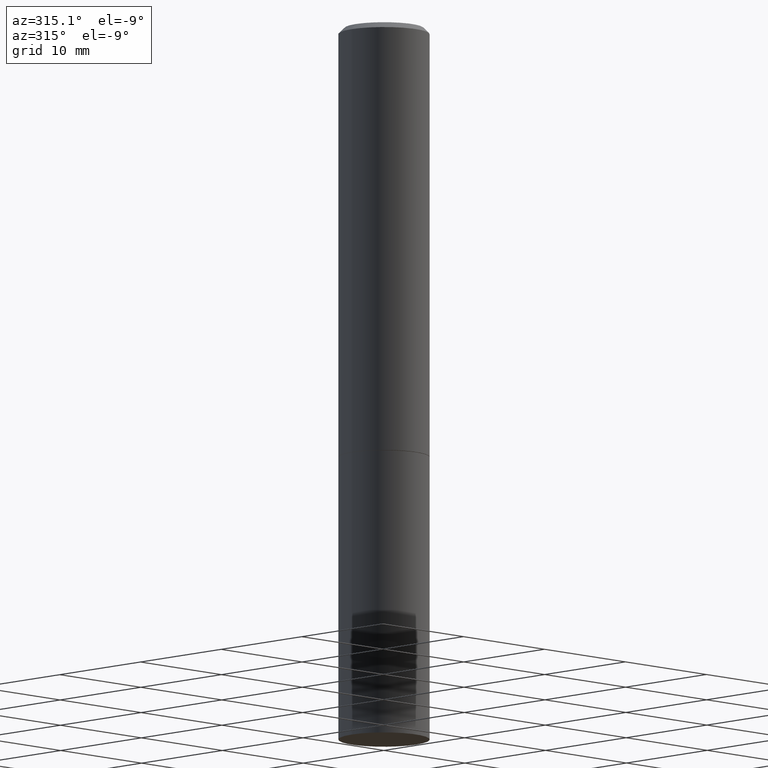
[diagram: clean part render]
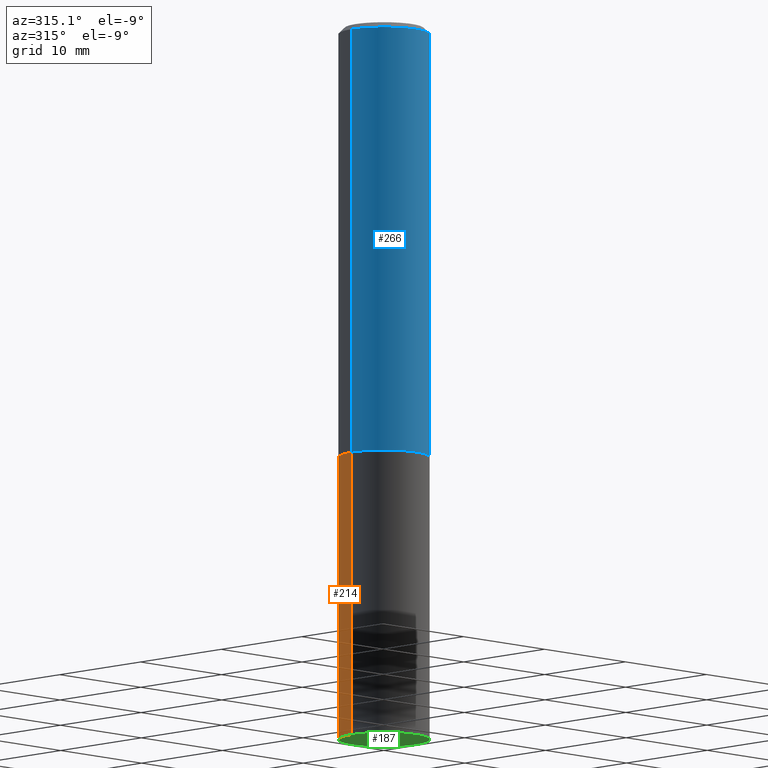
[diagram: same view with three faces highlighted in distinct colors, each labeled with its STEP entity id]
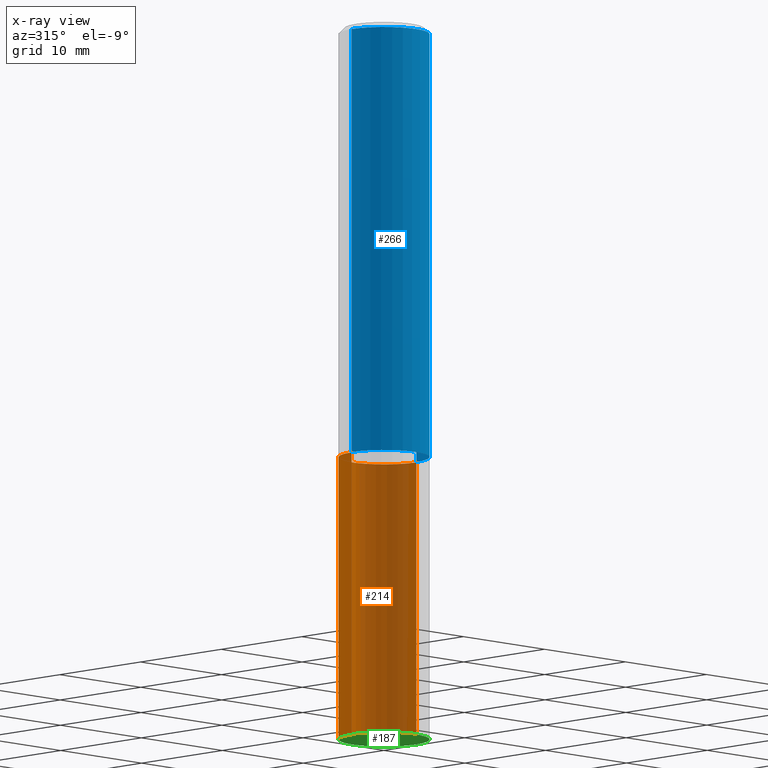
[diagram: x-ray of the same camera — body ghosted, the three highlighted faces saturated]
A machine part, auxiliary view with three faces highlighted in distinct colors.
The next image is the same camera in x-ray (body ghosted, the three faces saturated) — at least one of them is partly hidden behind the body in this view.
Their STEP definitions:

[orange] entity #214 — the highlighted cylindrical surface (partial cylindrical patch) has radius 4.0005 mm, axis along (-0, 0, 1).
#5 = CARTESIAN_POINT ( 'NONE',  ( 0.1575000000000000011, -1.099816621735586889E-15, 7.679978421878598033E-30 ) ) ;
#10 = VERTEX_POINT ( 'NONE', #261 ) ;
#20 = LINE ( 'NONE', #5, #118 ) ;
#21 = CARTESIAN_POINT ( 'NONE',  ( -0.1575000000000000011, -5.822483814998842744E-15, -2.480300000000000171 ) ) ;
#22 = DIRECTION ( 'NONE',  ( 1.000000000000000000, -6.982962677686265922E-15, 4.876176775795935232E-29 ) ) ;
#36 = ORIENTED_EDGE ( 'NONE', *, *, #328, .F. ) ;
#41 = CARTESIAN_POINT ( 'NONE',  ( -0.1575000000000000011, -5.822483814998842744E-15, -1.496000000000000441 ) ) ;
#47 = DIRECTION ( 'NONE',  ( -2.445468806185136877E-29, 3.491481338843145188E-15, 1.000000000000000000 ) ) ;
#53 = EDGE_CURVE ( 'NONE', #194, #87, #212, .T. ) ;
#67 = DIRECTION ( 'NONE',  ( 1.000000000000000000, -6.982962677686268288E-15, 0.000000000000000000 ) ) ;
#78 = VECTOR ( 'NONE', #47, 39.37007874015748143 ) ;
#81 = CARTESIAN_POINT ( 'NONE',  ( 6.065496279980994755E-29, -8.659921164732655335E-15, -2.480300000000000171 ) ) ;
#87 = VERTEX_POINT ( 'NONE', #41 ) ;
#107 = CIRCLE ( 'NONE', #234, 0.1575000000000000011 ) ;
#115 = ORIENTED_EDGE ( 'NONE', *, *, #53, .F. ) ;
#118 = VECTOR ( 'NONE', #224, 39.37007874015748143 ) ;
#135 = DIRECTION ( 'NONE',  ( -2.445468806185136597E-29, 3.491481338843145583E-15, 1.000000000000000000 ) ) ;
#136 = FACE_OUTER_BOUND ( 'NONE', #277, .T. ) ;
#146 = AXIS2_PLACEMENT_3D ( 'NONE', #327, #207, #22 ) ;
#158 = DIRECTION ( 'NONE',  ( 1.000000000000000000, -6.982962677686261977E-15, 0.000000000000000000 ) ) ;
#162 = EDGE_CURVE ( 'NONE', #10, #226, #107, .T. ) ;
#178 = DIRECTION ( 'NONE',  ( -2.445468806185136597E-29, 3.491481338843145583E-15, 1.000000000000000000 ) ) ;
#189 = CARTESIAN_POINT ( 'NONE',  ( -0.1575000000000000011, 1.119104808822157801E-15, -7.747322767151475583E-30 ) ) ;
#194 = VERTEX_POINT ( 'NONE', #303 ) ;
#207 = DIRECTION ( 'NONE',  ( -2.445468806185136597E-29, 3.491481338843145583E-15, 1.000000000000000000 ) ) ;
#212 = CIRCLE ( 'NONE', #262, 0.1575000000000000011 ) ;
#214 = ADVANCED_FACE ( 'NONE', ( #136 ), #241, .T. ) ;
#219 = EDGE_CURVE ( 'NONE', #226, #87, #353, .T. ) ;
#223 = ORIENTED_EDGE ( 'NONE', *, *, #162, .T. ) ;
#224 = DIRECTION ( 'NONE',  ( -2.445468806185136877E-29, 3.491481338843145188E-15, 1.000000000000000000 ) ) ;
#226 = VERTEX_POINT ( 'NONE', #21 ) ;
#234 = AXIS2_PLACEMENT_3D ( 'NONE', #81, #135, #158 ) ;
#241 = CYLINDRICAL_SURFACE ( 'NONE', #146, 0.1575000000000000011 ) ;
#261 = CARTESIAN_POINT ( 'NONE',  ( 0.1575000000000000011, -9.759737786468242027E-15, -2.480300000000000171 ) ) ;
#262 = AXIS2_PLACEMENT_3D ( 'NONE', #348, #178, #67 ) ;
#277 = EDGE_LOOP ( 'NONE', ( #223, #308, #115, #36 ) ) ;
#303 = CARTESIAN_POINT ( 'NONE',  ( 0.1575000000000000011, -6.323072704644934417E-15, -1.496000000000000441 ) ) ;
#308 = ORIENTED_EDGE ( 'NONE', *, *, #219, .T. ) ;
#327 = CARTESIAN_POINT ( 'NONE',  ( 0.000000000000000000, 0.000000000000000000, 0.000000000000000000 ) ) ;
#328 = EDGE_CURVE ( 'NONE', #10, #194, #20, .T. ) ;
#348 = CARTESIAN_POINT ( 'NONE',  ( 3.658421334052965286E-29, -5.223256082909346937E-15, -1.496000000000000441 ) ) ;
#353 = LINE ( 'NONE', #189, #78 ) ;

[blue] entity #266 — the highlighted cylindrical surface (partial cylindrical patch) has radius 4.0005 mm, axis along (-0, 0, 1).
#1 = VECTOR ( 'NONE', #203, 39.37007874015748143 ) ;
#16 = DIRECTION ( 'NONE',  ( -2.445468806185136597E-29, 3.491481338843145583E-15, 1.000000000000000000 ) ) ;
#46 = AXIS2_PLACEMENT_3D ( 'NONE', #301, #213, #271 ) ;
#60 = VERTEX_POINT ( 'NONE', #152 ) ;
#76 = EDGE_CURVE ( 'NONE', #254, #60, #182, .T. ) ;
#79 = DIRECTION ( 'NONE',  ( 1.000000000000000000, -6.982962677686266711E-15, 4.876176775795935793E-29 ) ) ;
#103 = CARTESIAN_POINT ( 'NONE',  ( 0.1575000000000000011, -6.319581223306091410E-15, -1.495000000000000329 ) ) ;
#125 = EDGE_CURVE ( 'NONE', #60, #225, #177, .T. ) ;
#126 = LINE ( 'NONE', #233, #1 ) ;
#130 = DIRECTION ( 'NONE',  ( 1.000000000000000000, -6.982962677686265922E-15, 0.000000000000000000 ) ) ;
#137 = EDGE_CURVE ( 'NONE', #249, #225, #126, .T. ) ;
#138 = CARTESIAN_POINT ( 'NONE',  ( -0.1575000000000000011, -1.525692305351524236E-15, -1.495000000000000329 ) ) ;
#152 = CARTESIAN_POINT ( 'NONE',  ( -0.1574999999999998346, 1.029986994958722604E-15, -0.02000000000000003511 ) ) ;
#165 = VECTOR ( 'NONE', #286, 39.37007874015748143 ) ;
#167 = ORIENTED_EDGE ( 'NONE', *, *, #76, .F. ) ;
#177 = CIRCLE ( 'NONE', #331, 0.1574999999999998346 ) ;
#182 = LINE ( 'NONE', #288, #165 ) ;
#183 = AXIS2_PLACEMENT_3D ( 'NONE', #210, #326, #79 ) ;
#203 = DIRECTION ( 'NONE',  ( -2.445468806185136877E-29, 3.491481338843145188E-15, 1.000000000000000000 ) ) ;
#210 = CARTESIAN_POINT ( 'NONE',  ( 0.000000000000000000, 0.000000000000000000, 0.000000000000000000 ) ) ;
#213 = DIRECTION ( 'NONE',  ( -2.445468806185136597E-29, 3.491481338843145583E-15, 1.000000000000000000 ) ) ;
#221 = ORIENTED_EDGE ( 'NONE', *, *, #125, .F. ) ;
#222 = EDGE_CURVE ( 'NONE', #254, #249, #325, .T. ) ;
#225 = VERTEX_POINT ( 'NONE', #267 ) ;
#233 = CARTESIAN_POINT ( 'NONE',  ( 0.1574999999999998901, -1.099816621735586297E-15, 7.679978421878593829E-30 ) ) ;
#238 = FACE_OUTER_BOUND ( 'NONE', #247, .T. ) ;
#247 = EDGE_LOOP ( 'NONE', ( #167, #275, #313, #221 ) ) ;
#249 = VERTEX_POINT ( 'NONE', #103 ) ;
#254 = VERTEX_POINT ( 'NONE', #138 ) ;
#266 = ADVANCED_FACE ( 'NONE', ( #238 ), #357, .T. ) ;
#267 = CARTESIAN_POINT ( 'NONE',  ( 0.1574999999999998346, -1.150358061425878091E-15, -0.02000000000000003511 ) ) ;
#271 = DIRECTION ( 'NONE',  ( 1.000000000000000000, -6.982962677686268288E-15, 0.000000000000000000 ) ) ;
#275 = ORIENTED_EDGE ( 'NONE', *, *, #222, .T. ) ;
#286 = DIRECTION ( 'NONE',  ( -2.445468806185136877E-29, 3.491481338843145188E-15, 1.000000000000000000 ) ) ;
#288 = CARTESIAN_POINT ( 'NONE',  ( -0.1574999999999998901, 1.119104808822157012E-15, -7.747322767151471379E-30 ) ) ;
#291 = CARTESIAN_POINT ( 'NONE',  ( 4.890937612370281041E-31, -6.982962677686302702E-17, -0.02000000000000003511 ) ) ;
#301 = CARTESIAN_POINT ( 'NONE',  ( 3.655975865246779683E-29, -5.219764601570503930E-15, -1.495000000000000329 ) ) ;
#313 = ORIENTED_EDGE ( 'NONE', *, *, #137, .T. ) ;
#325 = CIRCLE ( 'NONE', #46, 0.1575000000000000011 ) ;
#326 = DIRECTION ( 'NONE',  ( -2.445468806185136597E-29, 3.491481338843145583E-15, 1.000000000000000000 ) ) ;
#331 = AXIS2_PLACEMENT_3D ( 'NONE', #291, #16, #130 ) ;
#357 = CYLINDRICAL_SURFACE ( 'NONE', #183, 0.1574999999999998901 ) ;

[green] entity #187 — the highlighted planar face has unit normal (0, -0, -1).
#4 = ORIENTED_EDGE ( 'NONE', *, *, #162, .F. ) ;
#10 = VERTEX_POINT ( 'NONE', #261 ) ;
#11 = EDGE_CURVE ( 'NONE', #226, #10, #337, .T. ) ;
#18 = DIRECTION ( 'NONE',  ( -2.445468806185136597E-29, 3.491481338843145583E-15, 1.000000000000000000 ) ) ;
#21 = CARTESIAN_POINT ( 'NONE',  ( -0.1575000000000000011, -5.822483814998842744E-15, -2.480300000000000171 ) ) ;
#24 = FACE_OUTER_BOUND ( 'NONE', #45, .T. ) ;
#45 = EDGE_LOOP ( 'NONE', ( #4, #276 ) ) ;
#81 = CARTESIAN_POINT ( 'NONE',  ( 6.065496279980994755E-29, -8.659921164732655335E-15, -2.480300000000000171 ) ) ;
#104 = CARTESIAN_POINT ( 'NONE',  ( 1.099816621735647434E-15, 0.1574999999999913136, -2.480300000000001059 ) ) ;
#107 = CIRCLE ( 'NONE', #234, 0.1575000000000000011 ) ;
#112 = AXIS2_PLACEMENT_3D ( 'NONE', #174, #18, #206 ) ;
#131 = PLANE ( 'NONE',  #305 ) ;
#135 = DIRECTION ( 'NONE',  ( -2.445468806185136597E-29, 3.491481338843145583E-15, 1.000000000000000000 ) ) ;
#157 = DIRECTION ( 'NONE',  ( -1.000000000000000000, 6.982962677686265922E-15, -4.876176775795935793E-29 ) ) ;
#158 = DIRECTION ( 'NONE',  ( 1.000000000000000000, -6.982962677686261977E-15, 0.000000000000000000 ) ) ;
#162 = EDGE_CURVE ( 'NONE', #10, #226, #107, .T. ) ;
#174 = CARTESIAN_POINT ( 'NONE',  ( 6.065496279980994755E-29, -8.659921164732655335E-15, -2.480300000000000171 ) ) ;
#187 = ADVANCED_FACE ( 'NONE', ( #24 ), #131, .T. ) ;
#206 = DIRECTION ( 'NONE',  ( 1.000000000000000000, -6.982962677686261977E-15, 0.000000000000000000 ) ) ;
#211 = DIRECTION ( 'NONE',  ( 2.438088387897960049E-29, -3.491481338843145188E-15, -1.000000000000000000 ) ) ;
#226 = VERTEX_POINT ( 'NONE', #21 ) ;
#234 = AXIS2_PLACEMENT_3D ( 'NONE', #81, #135, #158 ) ;
#261 = CARTESIAN_POINT ( 'NONE',  ( 0.1575000000000000011, -9.759737786468242027E-15, -2.480300000000000171 ) ) ;
#276 = ORIENTED_EDGE ( 'NONE', *, *, #11, .F. ) ;
#305 = AXIS2_PLACEMENT_3D ( 'NONE', #104, #211, #157 ) ;
#337 = CIRCLE ( 'NONE', #112, 0.1575000000000000011 ) ;